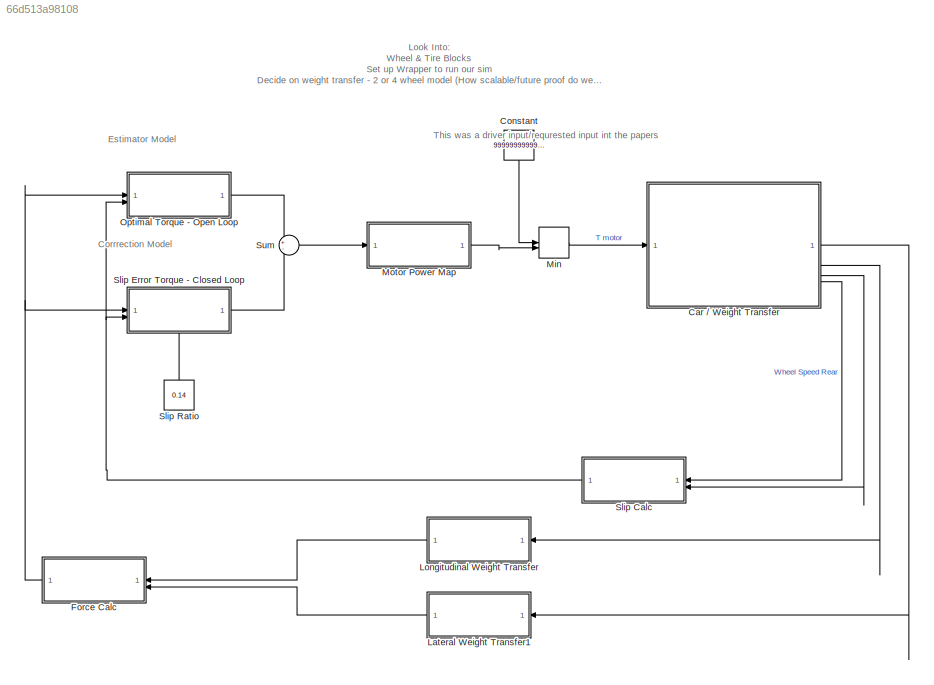
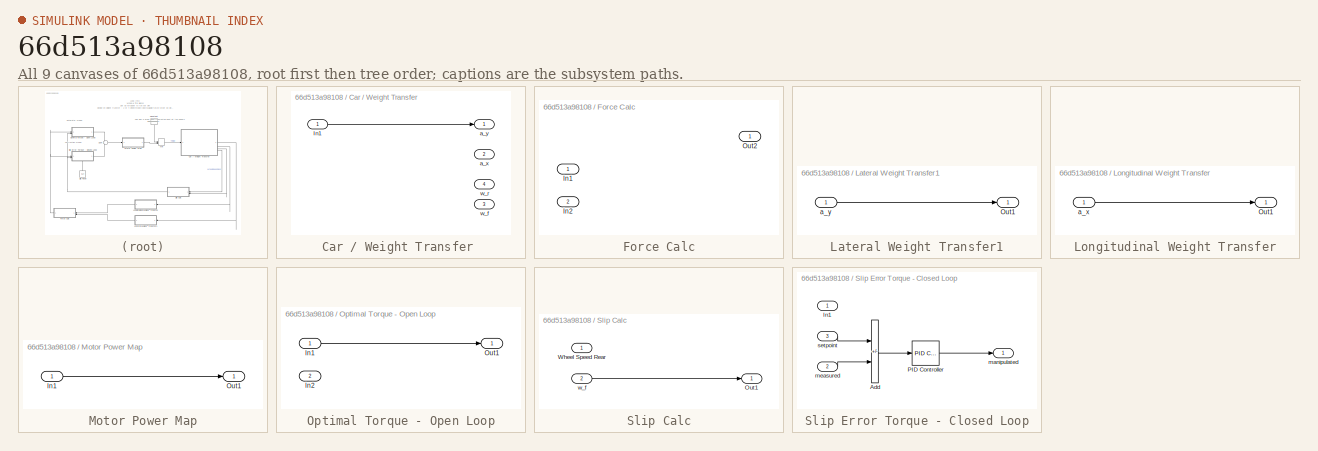
[diagram: thumbnail index - all 9 canvases of the model, root first then tree order]
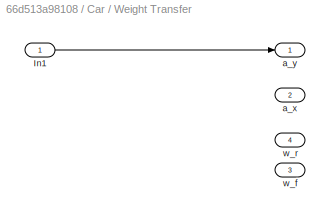
MODEL slx_66d513a98108
KIND model
CONFIG AbsTol = auto
CONFIG EnableMultiTasking = off
CONFIG FixedStep = auto
CONFIG MaxStep = auto
CONFIG MinStep = auto
CONFIG RelTol = 1e-3
CONFIG SampleTimeConstraint = Unconstrained
CONFIG SolverName = VariableStepAuto
CONFIG StartTime = 0.0
CONFIG StopTime = 10.0
BLOCK [SubSystem] Car // Weight Transfer 
BLOCK [Inport] Car // Weight Transfer /In1
BLOCK [Outport] Car // Weight Transfer /a_x
  Port = 2
BLOCK [Outport] Car // Weight Transfer /a_y
BLOCK [Outport] Car // Weight Transfer /w_f
  Port = 3
BLOCK [Outport] Car // Weight Transfer /w_r
  Port = 4
BLOCK [Constant] Constant
  NameLocation = left
  Value = 9999999999999
BLOCK [SubSystem] Force Calc
  NameLocation = top
BLOCK [Inport] Force Calc/In1
BLOCK [Inport] Force Calc/In2
  Port = 2
BLOCK [Outport] Force Calc/Out2
BLOCK [SubSystem] Lateral Weight Transfer1
  NameLocation = top
BLOCK [Outport] Lateral Weight Transfer1/Out1
BLOCK [Inport] Lateral Weight Transfer1/a_y
BLOCK [SubSystem] Longitudinal Weight Transfer
  NameLocation = top
BLOCK [Outport] Longitudinal Weight Transfer/Out1
BLOCK [Inport] Longitudinal Weight Transfer/a_x
BLOCK [MinMax] Min
  Inputs = 2
BLOCK [SubSystem] Motor Power Map
BLOCK [Inport] Motor Power Map/In1
BLOCK [Outport] Motor Power Map/Out1
BLOCK [SubSystem] Optimal Torque - Open Loop
BLOCK [Inport] Optimal Torque - Open Loop/In1
BLOCK [Inport] Optimal Torque - Open Loop/In2
  Port = 2
BLOCK [Outport] Optimal Torque - Open Loop/Out1
BLOCK [SubSystem] Slip Calc
  NameLocation = top
BLOCK [Outport] Slip Calc/Out1
BLOCK [Inport] Slip Calc/Wheel Speed Rear
BLOCK [Inport] Slip Calc/w_f
  Port = 2
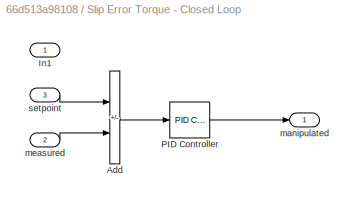
BLOCK [SubSystem] Slip Error Torque - Closed Loop
  NameLocation = top
  PortSchema = {"entries":[{"content":{"sides":[{"content":{"connectorIds":["In1","In2"]},"type":"ConnectorPlacement.EquallySpacedRectSide","uuid":"2e14bde7-f8d2-4eed-92ee-ce4e5654d4f8"},{"content":{"connectorIds":["Out1"],"side":"RIGHT"},"type":"ConnectorPlacement.EquallySpacedRectSide","uuid":"a3be9eae-ada7-4228-af9a-31d1d8dc2318"},{"content":{"side":"TOP"},"type":"ConnectorPlacement.EquallySpacedRectSide","uu...<+377ch>
BLOCK [Sum] Slip Error Torque - Closed Loop/Add
  IconShape = rectangular
  Inputs = +-
BLOCK [Inport] Slip Error Torque - Closed Loop/In1
BLOCK [Reference] Slip Error Torque - Closed Loop/PID Controller  REF=slpidlib/PID Controller
  LibrarySourceBlock = simulink/Continuous/PID Controller
  SourceBlock = slpidlib/PID Controller
  SourceType = PID 1dof
BLOCK [Outport] Slip Error Torque - Closed Loop/manipulated
BLOCK [Inport] Slip Error Torque - Closed Loop/measured
  Port = 2
BLOCK [Inport] Slip Error Torque - Closed Loop/setpoint
  Port = 3
BLOCK [Constant] Slip Ratio
  Value = 0.14
BLOCK [Sum] Sum
  Inputs = +-
ANNOTATION (root): Corrrection Model
ANNOTATION (root): Estimator Model
ANNOTATION (root): Look Into: Wheel & Tire Blocks Set up Wrapper to run our sim Decide on weight transfer - 2 or 4 wheel model (How scalable/future proof do we want it)
ANNOTATION (root): This was a driver input/requrested input int the papers
LINE Car // Weight Transfer /In1:1 -> Car // Weight Transfer /a_y:1
LINE Car // Weight Transfer :1 -> Lateral Weight Transfer1:1
LINE Car // Weight Transfer :2 -> Longitudinal Weight Transfer:1
LINE Car // Weight Transfer :3 -> Slip Calc:2
LINE Car // Weight Transfer :4 -> Slip Calc:1
LINE Constant:1 -> Min:1
NET Force Calc:1 -> Optimal Torque - Open Loop:1, Slip Error Torque - Closed Loop:1
LINE Lateral Weight Transfer1/a_y:1 -> Lateral Weight Transfer1/Out1:1
LINE Lateral Weight Transfer1:1 -> Force Calc:2
LINE Longitudinal Weight Transfer/a_x:1 -> Longitudinal Weight Transfer/Out1:1
LINE Longitudinal Weight Transfer:1 -> Force Calc:1
LINE Min:1 -> Car // Weight Transfer :1
LINE Motor Power Map/In1:1 -> Motor Power Map/Out1:1
LINE Motor Power Map:1 -> Min:2
LINE Optimal Torque - Open Loop/In1:1 -> Optimal Torque - Open Loop/Out1:1
LINE Optimal Torque - Open Loop:1 -> Sum:1
LINE Slip Calc/w_f:1 -> Slip Calc/Out1:1
NET Slip Calc:1 -> Optimal Torque - Open Loop:2, Slip Error Torque - Closed Loop:2
LINE Slip Error Torque - Closed Loop/Add:1 -> Slip Error Torque - Closed Loop/PID Controller:1
LINE Slip Error Torque - Closed Loop/PID Controller:1 -> Slip Error Torque - Closed Loop/manipulated:1
LINE Slip Error Torque - Closed Loop/measured:1 -> Slip Error Torque - Closed Loop/Add:2
LINE Slip Error Torque - Closed Loop/setpoint:1 -> Slip Error Torque - Closed Loop/Add:1
LINE Slip Error Torque - Closed Loop:1 -> Sum:2
LINE Slip Ratio:1 -> Slip Error Torque - Closed Loop:3
LINE Sum:1 -> Motor Power Map:1
note: NET lines group one-source signal fan-out (src -> all destinations, sorted); 1:1 wires keep LINE
